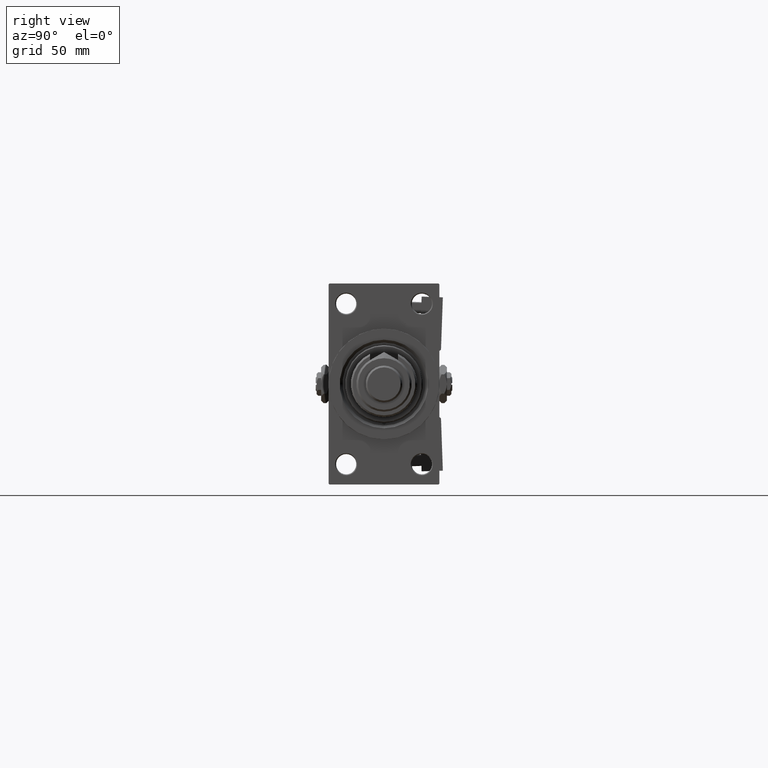
[diagram: clean part render]
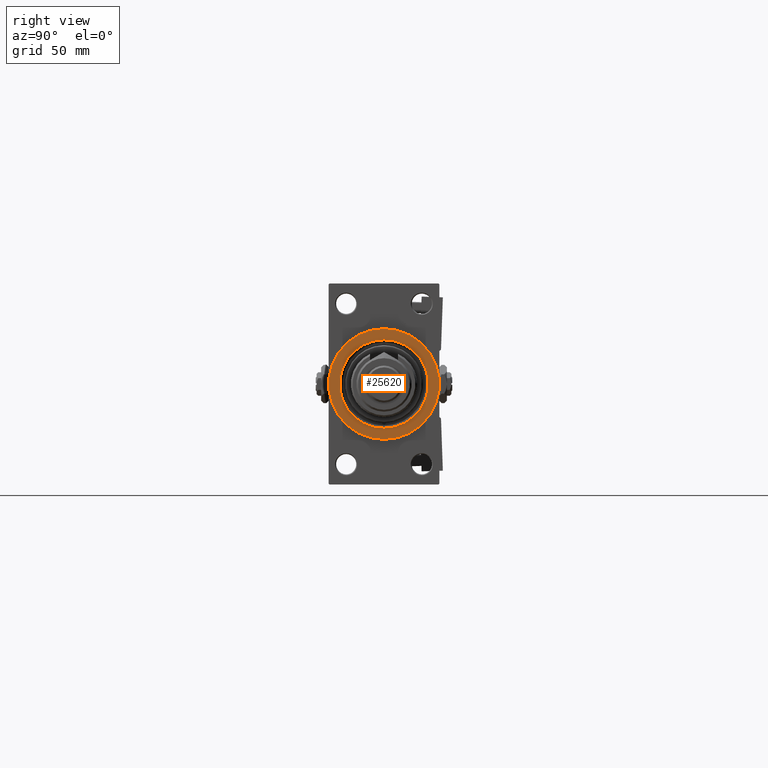
[diagram: same view with one face highlighted and labeled with its STEP entity id]
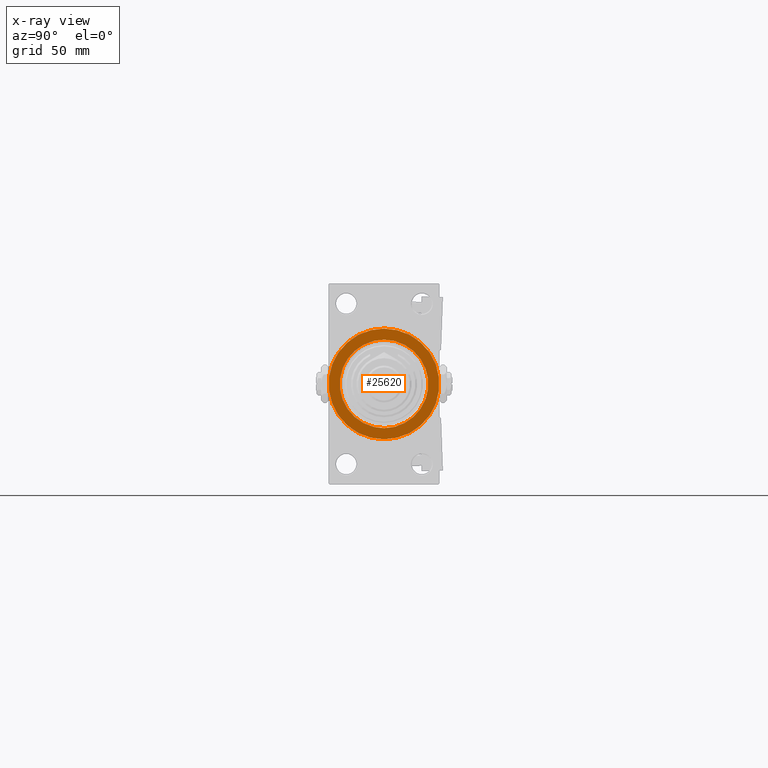
[diagram: x-ray of the same camera — body ghosted, the highlighted face saturated]
A machine part, right view. The second image highlights one B-rep face of the part: STEP entity #25620.
The next image is the same camera in x-ray: the body ghosted, the highlighted face saturated — about 0% of this face is hidden behind the body in this view.
In plain terms, the highlighted planar face has unit normal (1, 0, 0).
Its self-contained STEP definition (entity closure, byte-faithful):
#68 = DIRECTION ( 'NONE',  ( 0.000000000000000000, 0.000000000000000000, -1.000000000000000000 ) ) ;
#163 = ORIENTED_EDGE ( 'NONE', *, *, #28759, .T. ) ;
#1383 = DIRECTION ( 'NONE',  ( 0.000000000000000000, 0.000000000000000000, -1.000000000000000000 ) ) ;
#1822 = CARTESIAN_POINT ( 'NONE',  ( 253.0000000000000000, 0.000000000000000000, 0.000000000000000000 ) ) ;
#6153 = VERTEX_POINT ( 'NONE', #41261 ) ;
#6746 = EDGE_CURVE ( 'NONE', #45026, #44082, #36081, .T. ) ;
#9079 = ORIENTED_EDGE ( 'NONE', *, *, #6746, .T. ) ;
#10299 = DIRECTION ( 'NONE',  ( 1.000000000000000000, 0.000000000000000000, 0.000000000000000000 ) ) ;
#13690 = DIRECTION ( 'NONE',  ( -1.000000000000000000, -0.000000000000000000, -0.000000000000000000 ) ) ;
#15417 = FACE_BOUND ( 'NONE', #39157, .T. ) ;
#15495 = CIRCLE ( 'NONE', #17239, 30.00000000000000000 ) ;
#15968 = EDGE_CURVE ( 'NONE', #41650, #6153, #44721, .T. ) ;
#16715 = DIRECTION ( 'NONE',  ( 1.000000000000000000, 0.000000000000000000, 0.000000000000000000 ) ) ;
#17239 = AXIS2_PLACEMENT_3D ( 'NONE', #1822, #10299, #38730 ) ;
#19523 = PLANE ( 'NONE',  #42358 ) ;
#20054 = DIRECTION ( 'NONE',  ( 1.000000000000000000, 0.000000000000000000, 0.000000000000000000 ) ) ;
#21209 = AXIS2_PLACEMENT_3D ( 'NONE', #50852, #13690, #1383 ) ;
#23786 = AXIS2_PLACEMENT_3D ( 'NONE', #37482, #16715, #41848 ) ;
#24226 = CARTESIAN_POINT ( 'NONE',  ( 253.0000000000000000, 0.000000000000000000, -23.99999999999999645 ) ) ;
#25145 = ORIENTED_EDGE ( 'NONE', *, *, #15968, .T. ) ;
#25620 = ADVANCED_FACE ( 'NONE', ( #15417, #48206 ), #19523, .T. ) ;
#25812 = CARTESIAN_POINT ( 'NONE',  ( 253.0000000000000000, 2.939152317953647500E-15, 23.99999999999999645 ) ) ;
#27543 = AXIS2_PLACEMENT_3D ( 'NONE', #38047, #41891, #68 ) ;
#28448 = EDGE_LOOP ( 'NONE', ( #25145, #33858 ) ) ;
#28759 = EDGE_CURVE ( 'NONE', #44082, #45026, #48493, .T. ) ;
#28909 = CARTESIAN_POINT ( 'NONE',  ( 253.0000000000000000, 0.000000000000000000, 30.00000000000000000 ) ) ;
#31253 = DIRECTION ( 'NONE',  ( 0.000000000000000000, 0.000000000000000000, -1.000000000000000000 ) ) ;
#33858 = ORIENTED_EDGE ( 'NONE', *, *, #39096, .T. ) ;
#35635 = CARTESIAN_POINT ( 'NONE',  ( 253.0000000000000000, 0.000000000000000000, 0.000000000000000000 ) ) ;
#36081 = CIRCLE ( 'NONE', #21209, 23.99999999999999645 ) ;
#37482 = CARTESIAN_POINT ( 'NONE',  ( 253.0000000000000000, 0.000000000000000000, 0.000000000000000000 ) ) ;
#38047 = CARTESIAN_POINT ( 'NONE',  ( 253.0000000000000000, 0.000000000000000000, 0.000000000000000000 ) ) ;
#38730 = DIRECTION ( 'NONE',  ( 0.000000000000000000, 0.000000000000000000, -1.000000000000000000 ) ) ;
#39096 = EDGE_CURVE ( 'NONE', #6153, #41650, #15495, .T. ) ;
#39157 = EDGE_LOOP ( 'NONE', ( #163, #9079 ) ) ;
#41261 = CARTESIAN_POINT ( 'NONE',  ( 253.0000000000000000, 3.673940397442059178E-15, -30.00000000000000000 ) ) ;
#41650 = VERTEX_POINT ( 'NONE', #28909 ) ;
#41848 = DIRECTION ( 'NONE',  ( 0.000000000000000000, 0.000000000000000000, -1.000000000000000000 ) ) ;
#41891 = DIRECTION ( 'NONE',  ( -1.000000000000000000, -0.000000000000000000, -0.000000000000000000 ) ) ;
#42358 = AXIS2_PLACEMENT_3D ( 'NONE', #35635, #20054, #31253 ) ;
#44082 = VERTEX_POINT ( 'NONE', #24226 ) ;
#44721 = CIRCLE ( 'NONE', #23786, 30.00000000000000000 ) ;
#45026 = VERTEX_POINT ( 'NONE', #25812 ) ;
#48206 = FACE_OUTER_BOUND ( 'NONE', #28448, .T. ) ;
#48493 = CIRCLE ( 'NONE', #27543, 23.99999999999999645 ) ;
#50852 = CARTESIAN_POINT ( 'NONE',  ( 253.0000000000000000, 0.000000000000000000, 0.000000000000000000 ) ) ;